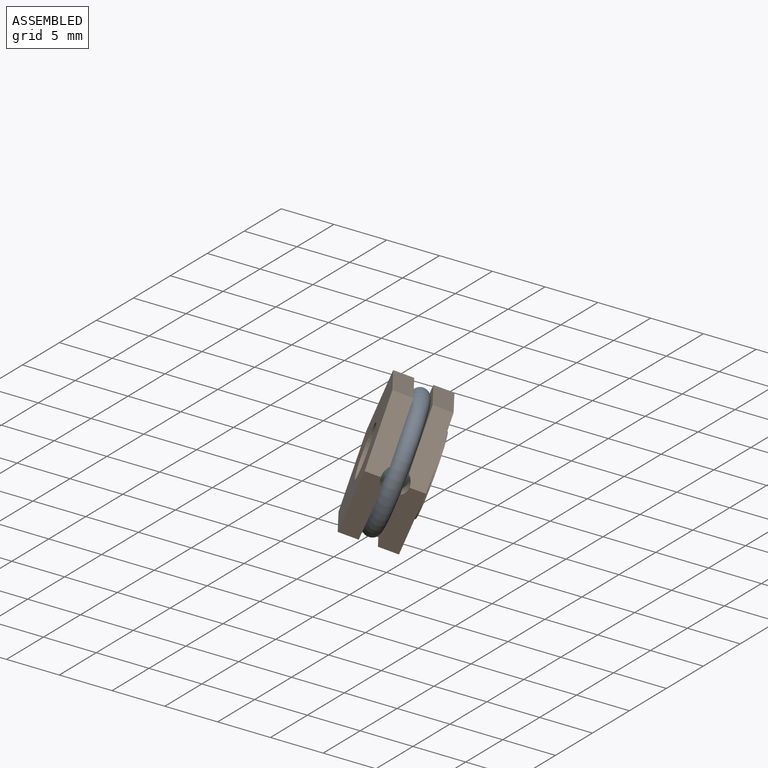
[diagram: assembled view]
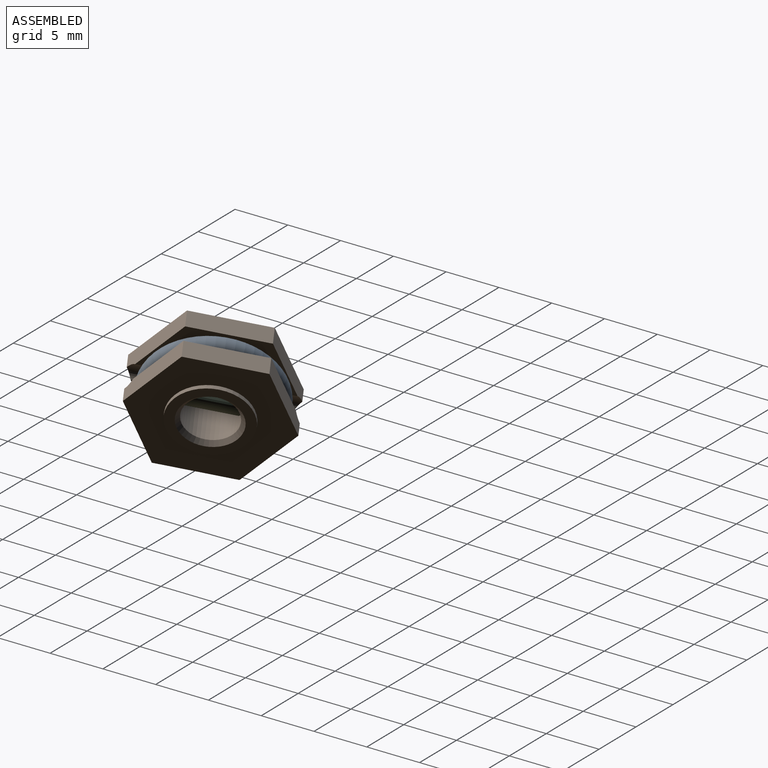
[diagram: assembled view, second angle]
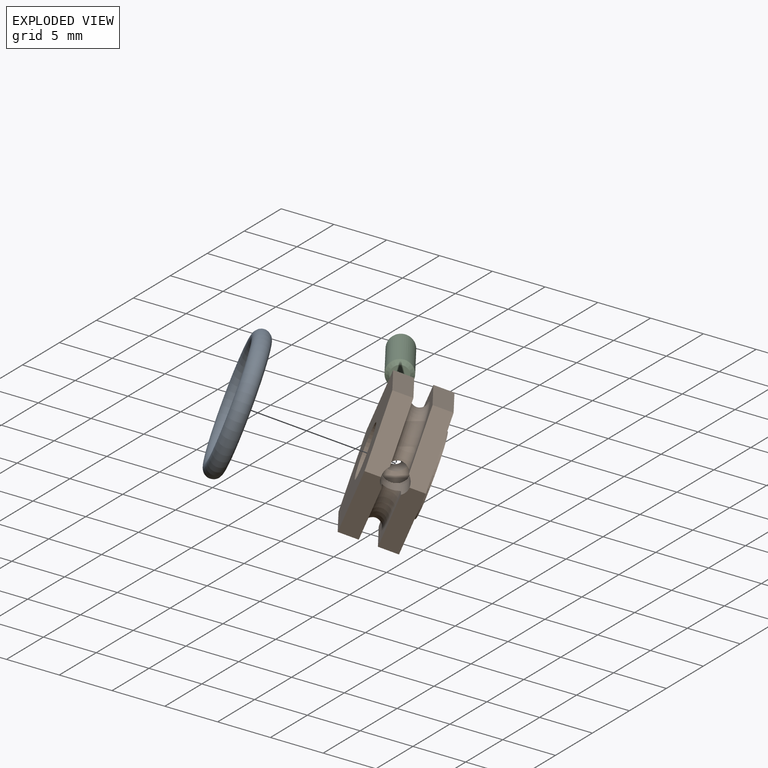
[diagram: exploded view]
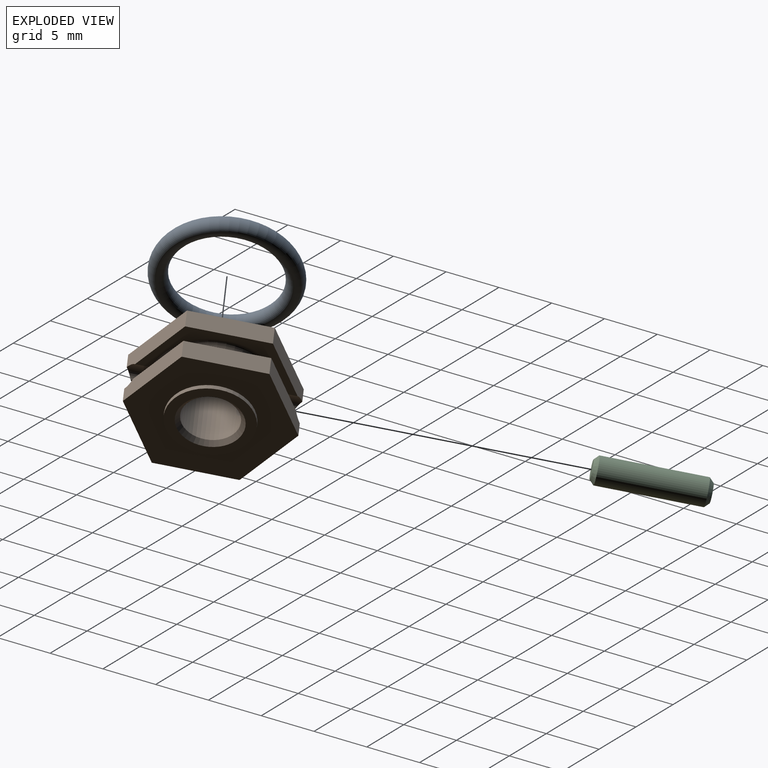
[diagram: exploded view, second angle]
ASSEMBLY  parts=3 mates=2
PART A: 1 faces, bbox 13.4x13.4x1.6 mm
  f0: torus R=5.38mm, axis (0,0,1), area 168.7mm2
PART B: 26 faces, bbox 13.9x5.5x13.3 mm
  f0: plane 6.03x3.48mm, normal (0.87,0,0.5), area 11.9mm2, adj f1,f5,f7,f14,f22
  f1: plane 6.97x1.75mm, normal (0,0,1), area 11.9mm2, adj f0,f2,f7,f14,f23
  f2: plane 6.03x3.48mm, normal (-0.87,0,0.5), area 12.2mm2, adj f1,f3,f14,f23
  f3: plane 6.03x3.48mm, normal (-0.87,0,-0.5), area 11.9mm2, adj f2,f4,f6,f14,f23
  f4: plane 6.97x1.75mm, normal (0,0,-1), area 11.9mm2, adj f3,f5,f6,f14,f22
  f5: plane 6.03x3.48mm, normal (0.87,0,-0.5), area 12.2mm2, adj f0,f4,f14,f22
  f6: cylinder r=1.19mm len=5.44mm, axis (0.5,0,0.87), area 26.3mm2, adj f3,f4,f11,f12,f16,f20,f21,f22
  f7: cylinder r=1.19mm len=5.44mm, axis (0.5,0,0.87), area 26.3mm2, adj f0,f1,f8,f9,f16,f20,f21,f22
  f8: plane 6.03x3.48mm, normal (0.87,0,0.5), area 11.9mm2, adj f7,f9,f13,f15,f20
  f9: plane 6.97x1.75mm, normal (0,0,1), area 11.9mm2, adj f7,f8,f10,f15,f25
  f10: plane 6.03x3.48mm, normal (-0.87,0,0.5), area 12.2mm2, adj f9,f11,f15,f25
  f11: plane 6.03x3.48mm, normal (-0.87,0,-0.5), area 11.9mm2, adj f6,f10,f12,f15,f25
  f12: plane 6.97x1.75mm, normal (0,0,-1), area 11.9mm2, adj f6,f11,f13,f15,f20
  f13: plane 6.03x3.48mm, normal (0.87,0,-0.5), area 12.2mm2, adj f8,f12,f15,f20
  f14: plane 13.93x12.07mm, normal (0,-1,0), area 84.2mm2, adj f0,f1,f2,f3,f4,f5,f17
  f15: plane 13.93x12.07mm, normal (0,1,0), area 108.2mm2, adj f8,f9,f10,f11,f12,f13,f16
  f16: cylinder r=2.38mm len=5.08mm, axis (0,1,0), area 66.8mm2, adj f6,f7,f15,f19
  f17: cylinder r=3.65mm len=7.3mm, axis (0,1,0), area 8.7mm2, adj f14,f18
  f18: plane 7.3x7.3mm, normal (0,-1,0), area 17.9mm2, adj f17,f19
  f19: cone r=2.38mm half-angle=45deg, axis (0,-1,0), area 8.7mm2, adj f16,f18
  f20: plane 11.18x9.42mm, normal (0,-1,0), area 15.2mm2, adj f6,f7,f8,f12,f13,f21
  f21: torus R=5.38mm, axis (0,-1,0), area 32.9mm2, adj f6,f7,f20,f22
  f22: plane 11.18x9.42mm, normal (0,1,0), area 15.2mm2, adj f0,f4,f5,f6,f7,f21
  f23: plane 11.18x9.42mm, normal (0,1,0), area 15.2mm2, adj f1,f2,f3,f6,f7,f24
  f24: torus R=5.38mm, axis (0,-1,0), area 32.9mm2, adj f6,f7,f23,f25
  f25: plane 11.18x9.42mm, normal (0,-1,0), area 15.2mm2, adj f6,f7,f9,f10,f11,f24
PART C: 5 faces, bbox 2.4x9.5x2.4 mm
  f0: cylinder r=1.19mm len=8.76mm, axis (0,1,0), area 65.6mm2, adj f3,f4
  f1: plane 1.62x1.62mm, normal (0,-1,0), area 2.1mm2, adj f4
  f2: plane 1.62x1.62mm, normal (0,1,0), area 2.1mm2, adj f3
  f3: cone r=1.19mm half-angle=45deg, axis (0,-1,0), area 3.4mm2, adj f0,f2
  f4: cone r=0.81mm half-angle=45deg, axis (0,1,0), area 3.4mm2, adj f0,f1
PLACE A rot(axis=(-0.25,0.95,0.18),112.7deg) t=(-4.14,-4.94,20.4)mm
PLACE B rot(axis=(-0.46,0.43,0.78),144.2deg) t=(-4.14,-4.94,20.4)mm
PLACE C rot(axis=(0.9,0.24,-0.36),155.9deg) t=(-4.18,-4.89,20.39)mm
MATE cylindrical A.f0 <-> B.f21  axis (0.81,0.47,-0.34) through (-4.14,-4.94,20.4)mm
MATE revolute C.f0 <-> B.f6  axis (0.55,-0.81,0.21) through (-4.18,-4.89,20.39)mm
